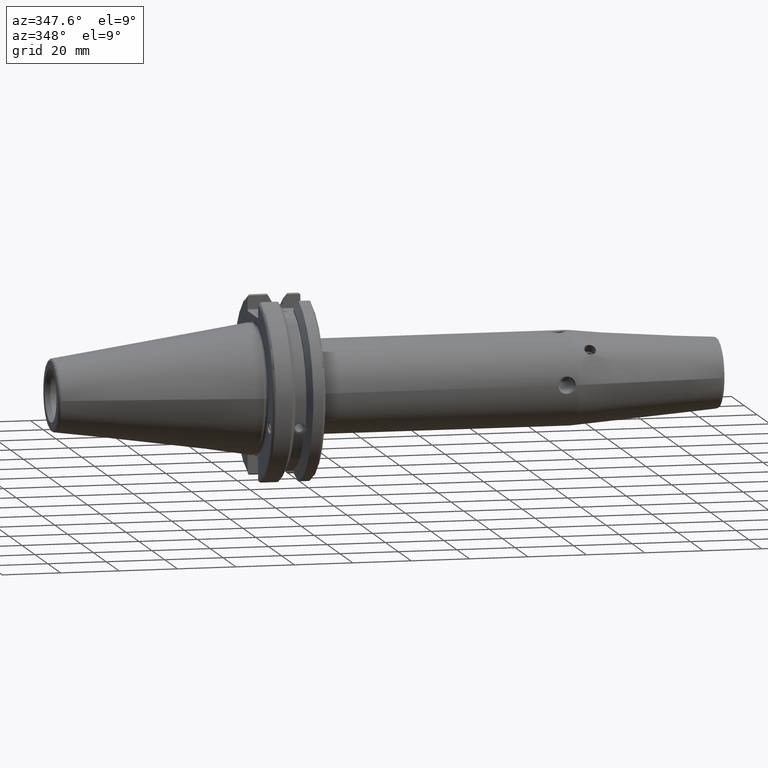
[diagram: clean part render]
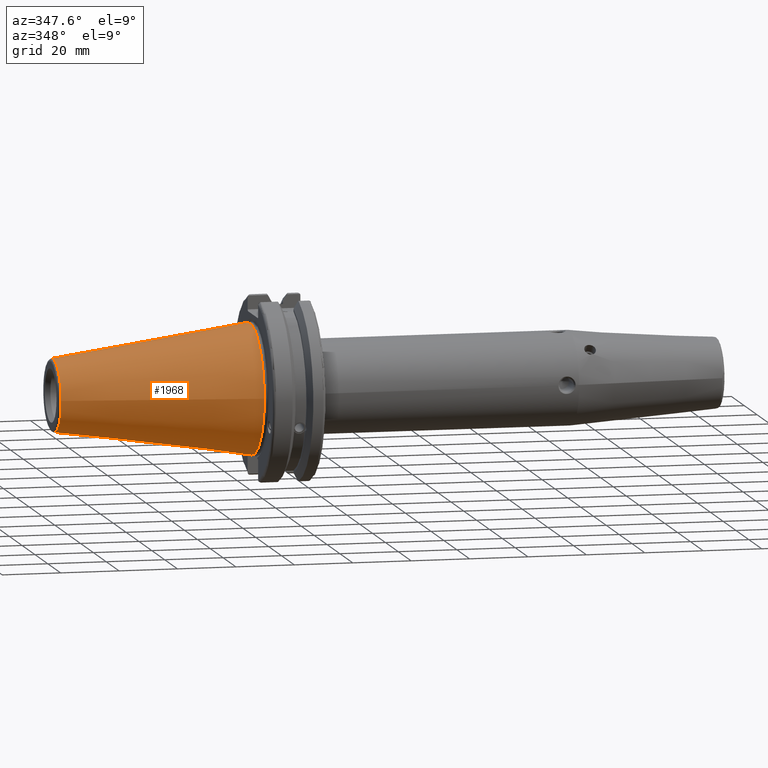
[diagram: same view with one face highlighted and labeled with its STEP entity id]
A machine part, auxiliary view. The second image highlights one B-rep face of the part: STEP entity #1968.
In plain terms, the highlighted conical surface has half-angle 8.297 deg.
Its self-contained STEP definition (entity closure, byte-faithful):
#142=CONICAL_SURFACE('',#2185,17.2484375,0.144812498238939);
#226=FACE_OUTER_BOUND('',#357,.T.);
#357=EDGE_LOOP('',(#1700,#1701,#1702,#1703,#1704));
#489=LINE('',#4636,#607);
#607=VECTOR('',#2660,17.2484375);
#692=CIRCLE('',#2179,12.3966635780937);
#693=CIRCLE('',#2180,12.3966635780937);
#697=CIRCLE('',#2186,22.225);
#944=VERTEX_POINT('',#4623);
#945=VERTEX_POINT('',#4624);
#948=VERTEX_POINT('',#4634);
#1212=EDGE_CURVE('',#944,#945,#692,.T.);
#1213=EDGE_CURVE('',#945,#944,#693,.T.);
#1217=EDGE_CURVE('',#948,#948,#697,.T.);
#1218=EDGE_CURVE('',#948,#945,#489,.T.);
#1700=ORIENTED_EDGE('',*,*,#1217,.F.);
#1701=ORIENTED_EDGE('',*,*,#1218,.T.);
#1702=ORIENTED_EDGE('',*,*,#1212,.F.);
#1703=ORIENTED_EDGE('',*,*,#1213,.F.);
#1704=ORIENTED_EDGE('',*,*,#1218,.F.);
#1968=ADVANCED_FACE('',(#226),#142,.T.);
#2179=AXIS2_PLACEMENT_3D('',#4625,#2644,#2645);
#2180=AXIS2_PLACEMENT_3D('',#4626,#2646,#2647);
#2185=AXIS2_PLACEMENT_3D('',#4633,#2656,#2657);
#2186=AXIS2_PLACEMENT_3D('',#4635,#2658,#2659);
#2644=DIRECTION('center_axis',(-1.,0.,0.));
#2645=DIRECTION('ref_axis',(0.,-1.,3.06161699786838E-17));
#2646=DIRECTION('center_axis',(-1.,0.,0.));
#2647=DIRECTION('ref_axis',(0.,-1.,3.06161699786838E-17));
#2656=DIRECTION('center_axis',(1.,0.,0.));
#2657=DIRECTION('ref_axis',(0.,1.,0.));
#2658=DIRECTION('center_axis',(1.,0.,0.));
#2659=DIRECTION('ref_axis',(0.,0.,-1.));
#2660=DIRECTION('',(-0.989532981063282,0.144306893071729,1.76724974695192E-17));
#4623=CARTESIAN_POINT('',(-67.3943068930717,-1.5181534371019E-15,12.3966635780937));
#4624=CARTESIAN_POINT('',(-67.3943068930718,-12.3966635780937,-1.5181534371019E-15));
#4625=CARTESIAN_POINT('Origin',(-67.3943068930717,0.,-1.89769179637738E-15));
#4626=CARTESIAN_POINT('Origin',(-67.3943068930717,0.,-1.89769179637738E-15));
#4633=CARTESIAN_POINT('Origin',(-34.125,0.,0.));
#4634=CARTESIAN_POINT('',(0.,-22.225,-2.72177751110499E-15));
#4635=CARTESIAN_POINT('Origin',(0.,0.,0.));
#4636=CARTESIAN_POINT('',(-34.125,-17.2484375,-2.11232437746682E-15));